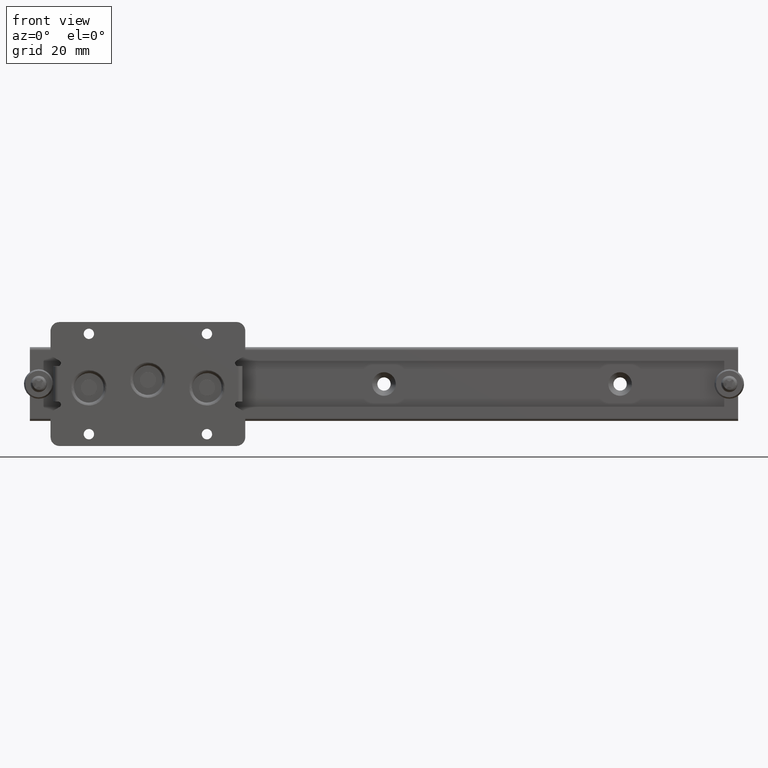
[diagram: clean part render]
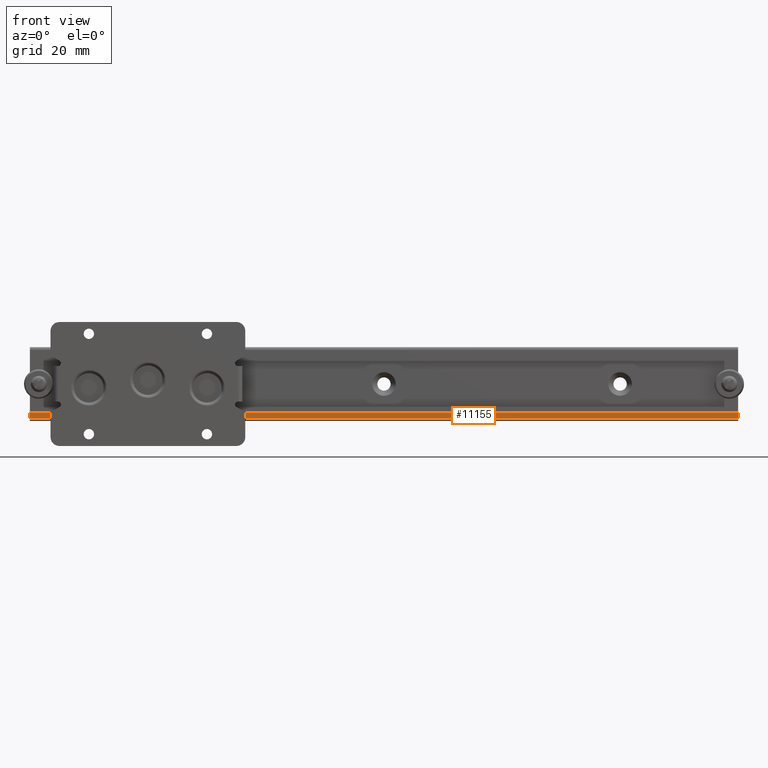
[diagram: same view with one face highlighted and labeled with its STEP entity id]
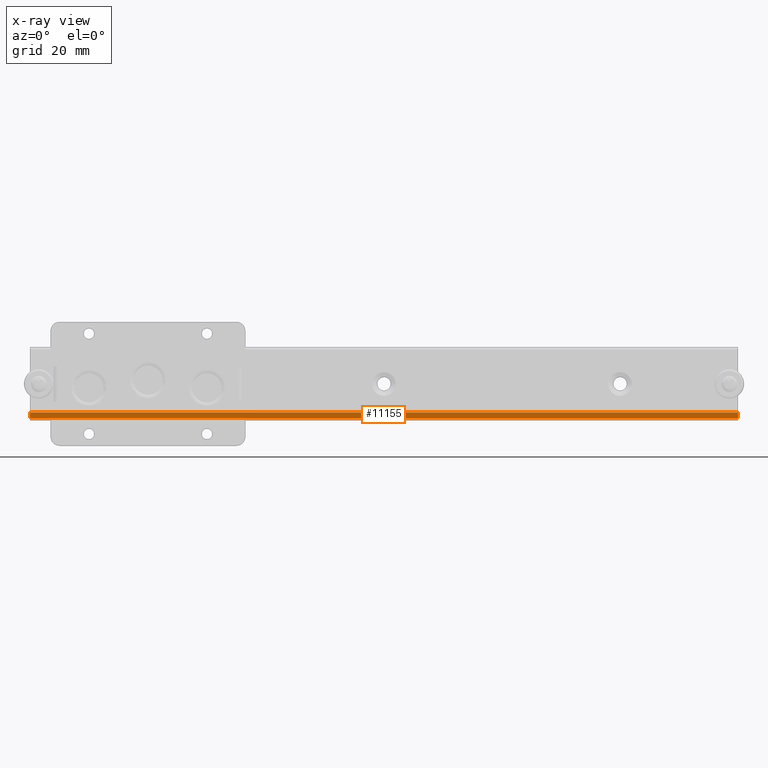
[diagram: x-ray of the same camera — body ghosted, the highlighted face saturated]
A machine part, front view. The second image highlights one B-rep face of the part: STEP entity #11155.
The next image is the same camera in x-ray: the body ghosted, the highlighted face saturated — about 0% of this face is hidden behind the body in this view.
In plain terms, the highlighted face is a freeform B-spline surface patch.
Its self-contained STEP definition (entity closure, byte-faithful):
#11105=CARTESIAN_POINT('',(0.0,-8.500000000000000,-9.600000000119080));
#11106=VERTEX_POINT('',#11105);
#11112=CARTESIAN_POINT('',(240.0,-8.500000000000000,-9.600000000119080));
#11113=VERTEX_POINT('',#11112);
#11114=CARTESIAN_POINT('',(240.0,-8.500000000000000,-9.600000000119080));
#11115=CARTESIAN_POINT('',(0.0,-8.500000000000000,-9.600000000119080));
#11116=QUASI_UNIFORM_CURVE('',1,(#11114,#11115),.UNSPECIFIED.,.F.,.U.);
#11117=EDGE_CURVE('',#11113,#11106,#11116,.T.);
#11128=CARTESIAN_POINT('',(-11.987999534833410,-8.500000000000000,-9.505095003801646));
#11129=CARTESIAN_POINT('',(-11.987999534833410,-8.500000000000000,-11.594905047398500));
#11130=CARTESIAN_POINT('',(251.988005972135110,-8.500000000000000,-9.505095003801646));
#11131=CARTESIAN_POINT('',(251.988005972135110,-8.500000000000000,-11.594905047398500));
#11132=B_SPLINE_SURFACE_WITH_KNOTS('',1,1,((#11128,#11130),(#11129,#11131)),.UNSPECIFIED.,.F.,.F.,.U.,(2,2),(2,2),(0.0,2.089810043596858),(0.0,263.976005506968480),.UNSPECIFIED.);
#11133=CARTESIAN_POINT('',(0.0,-8.500000000000000,-11.500000000119099));
#11134=VERTEX_POINT('',#11133);
#11135=CARTESIAN_POINT('',(0.0,-8.500000000000000,-11.500000000119099));
#11136=CARTESIAN_POINT('',(0.0,-8.500000000000000,-9.600000000119080));
#11137=QUASI_UNIFORM_CURVE('',1,(#11135,#11136),.UNSPECIFIED.,.F.,.U.);
#11138=EDGE_CURVE('',#11134,#11106,#11137,.T.);
#11139=ORIENTED_EDGE('',*,*,#11138,.F.);
#11140=CARTESIAN_POINT('',(240.0,-8.500000000000000,-11.500000000119099));
#11141=VERTEX_POINT('',#11140);
#11142=CARTESIAN_POINT('',(240.0,-8.500000000000000,-11.500000000119099));
#11143=CARTESIAN_POINT('',(0.0,-8.500000000000000,-11.500000000119099));
#11144=QUASI_UNIFORM_CURVE('',1,(#11142,#11143),.UNSPECIFIED.,.F.,.U.);
#11145=EDGE_CURVE('',#11141,#11134,#11144,.T.);
#11146=ORIENTED_EDGE('',*,*,#11145,.F.);
#11147=CARTESIAN_POINT('',(240.0,-8.500000000000000,-11.500000000119099));
#11148=CARTESIAN_POINT('',(240.0,-8.500000000000000,-9.600000000119080));
#11149=QUASI_UNIFORM_CURVE('',1,(#11147,#11148),.UNSPECIFIED.,.F.,.U.);
#11150=EDGE_CURVE('',#11141,#11113,#11149,.T.);
#11151=ORIENTED_EDGE('',*,*,#11150,.T.);
#11152=ORIENTED_EDGE('',*,*,#11117,.T.);
#11153=EDGE_LOOP('',(#11139,#11146,#11151,#11152));
#11154=FACE_OUTER_BOUND('',#11153,.T.);
#11155=ADVANCED_FACE('',(#11154),#11132,.T.);